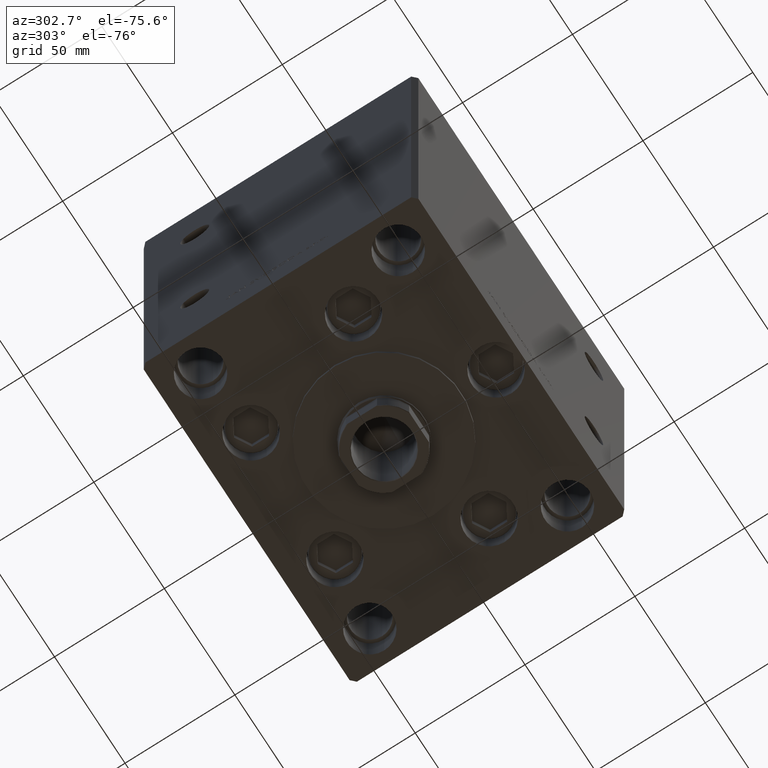
[diagram: clean part render]
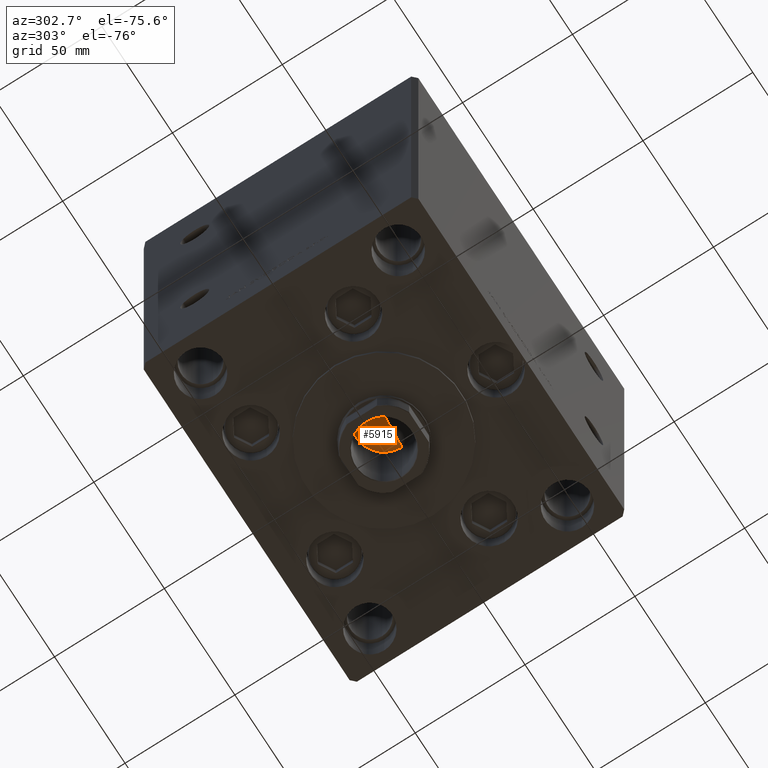
[diagram: same view with one face highlighted and labeled with its STEP entity id]
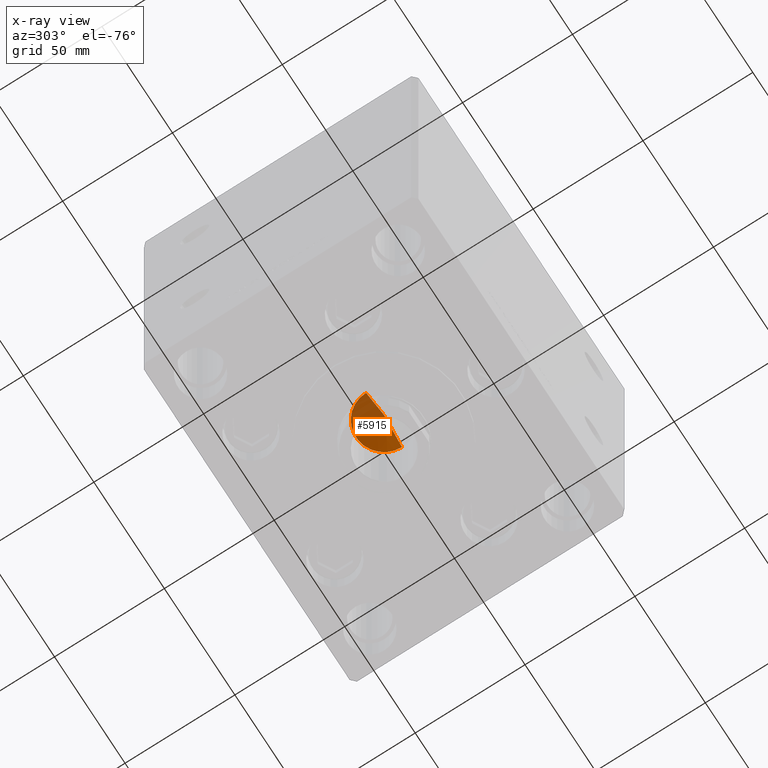
[diagram: x-ray of the same camera — body ghosted, the highlighted face saturated]
A machine part, auxiliary view. The second image highlights one B-rep face of the part: STEP entity #5915.
The next image is the same camera in x-ray: the body ghosted, the highlighted face saturated — about 38% of this face is hidden behind the body in this view.
In plain terms, the highlighted conical surface has half-angle 59 deg.
Its self-contained STEP definition (entity closure, byte-faithful):
#1508 = EDGE_LOOP ( 'NONE', ( #24964, #43482, #49598 ) ) ;
#1747 = CARTESIAN_POINT ( 'NONE',  ( -12.74999999999999112, 1.561424668912874125E-15, 122.5000000000000142 ) ) ;
#3018 = DIRECTION ( 'NONE',  ( -0.8571673007021117785, 1.049727191138617956E-16, 0.5150380749100550437 ) ) ;
#4369 = CIRCLE ( 'NONE', #27940, 12.74999999999999112 ) ;
#5915 = ADVANCED_FACE ( 'NONE', ( #34318 ), #47815, .F. ) ;
#6826 = LINE ( 'NONE', #37875, #14513 ) ;
#7181 = AXIS2_PLACEMENT_3D ( 'NONE', #50040, #22848, #30983 ) ;
#11058 = VECTOR ( 'NONE', #26691, 1000.000000000000000 ) ;
#11940 = VERTEX_POINT ( 'NONE', #1747 ) ;
#12904 = DIRECTION ( 'NONE',  ( 1.000000000000000000, 0.000000000000000000, 0.000000000000000000 ) ) ;
#14513 = VECTOR ( 'NONE', #3018, 1000.000000000000000 ) ;
#15000 = LINE ( 'NONE', #18814, #11058 ) ;
#15671 = EDGE_CURVE ( 'NONE', #24045, #11940, #4369, .T. ) ;
#18814 = CARTESIAN_POINT ( 'NONE',  ( 12.74999999999999112, 0.000000000000000000, 122.5000000000000142 ) ) ;
#20294 = DIRECTION ( 'NONE',  ( -0.000000000000000000, -0.000000000000000000, 1.000000000000000000 ) ) ;
#22848 = DIRECTION ( 'NONE',  ( -0.000000000000000000, -0.000000000000000000, 1.000000000000000000 ) ) ;
#23077 = EDGE_CURVE ( 'NONE', #27333, #24045, #15000, .T. ) ;
#23943 = CARTESIAN_POINT ( 'NONE',  ( 12.74999999999999112, 0.000000000000000000, 122.5000000000000142 ) ) ;
#24045 = VERTEX_POINT ( 'NONE', #23943 ) ;
#24964 = ORIENTED_EDGE ( 'NONE', *, *, #48927, .F. ) ;
#26691 = DIRECTION ( 'NONE',  ( 0.8571673007021117785, 0.000000000000000000, 0.5150380749100550437 ) ) ;
#27333 = VERTEX_POINT ( 'NONE', #41507 ) ;
#27940 = AXIS2_PLACEMENT_3D ( 'NONE', #43671, #20294, #12904 ) ;
#30983 = DIRECTION ( 'NONE',  ( 1.000000000000000000, 0.000000000000000000, 0.000000000000000000 ) ) ;
#34318 = FACE_OUTER_BOUND ( 'NONE', #1508, .T. ) ;
#37875 = CARTESIAN_POINT ( 'NONE',  ( -12.74999999999999112, 1.561424668912874125E-15, 122.5000000000000142 ) ) ;
#41507 = CARTESIAN_POINT ( 'NONE',  ( -1.307202896762960287E-14, 0.000000000000000000, 114.8390271073986071 ) ) ;
#43482 = ORIENTED_EDGE ( 'NONE', *, *, #23077, .T. ) ;
#43671 = CARTESIAN_POINT ( 'NONE',  ( 0.000000000000000000, 0.000000000000000000, 122.5000000000000142 ) ) ;
#47815 = CONICAL_SURFACE ( 'NONE', #7181, 12.74999999999999112, 1.029744258676653423 ) ;
#48927 = EDGE_CURVE ( 'NONE', #27333, #11940, #6826, .T. ) ;
#49598 = ORIENTED_EDGE ( 'NONE', *, *, #15671, .T. ) ;
#50040 = CARTESIAN_POINT ( 'NONE',  ( 0.000000000000000000, 0.000000000000000000, 122.5000000000000142 ) ) ;